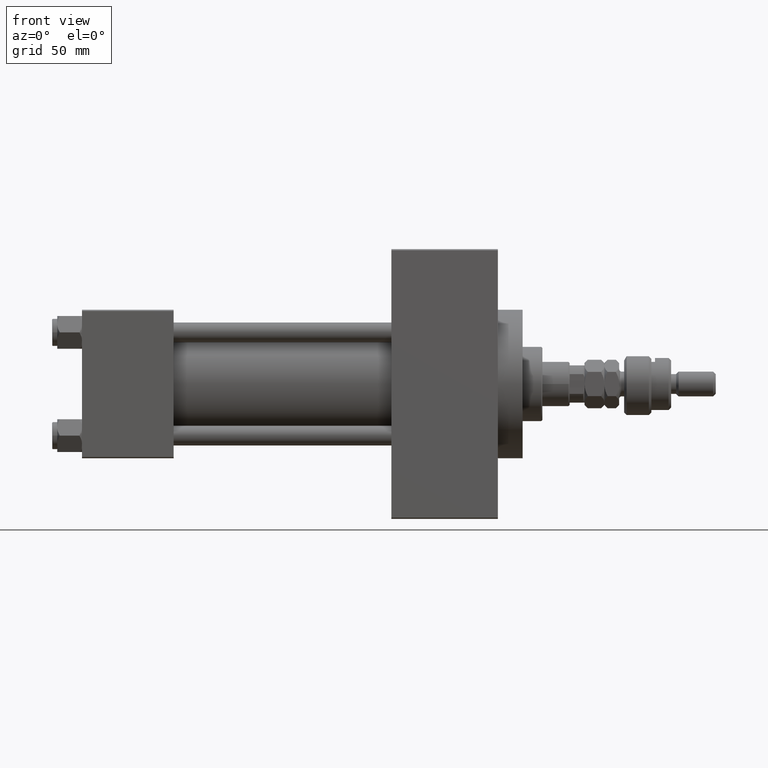
[diagram: clean part render]
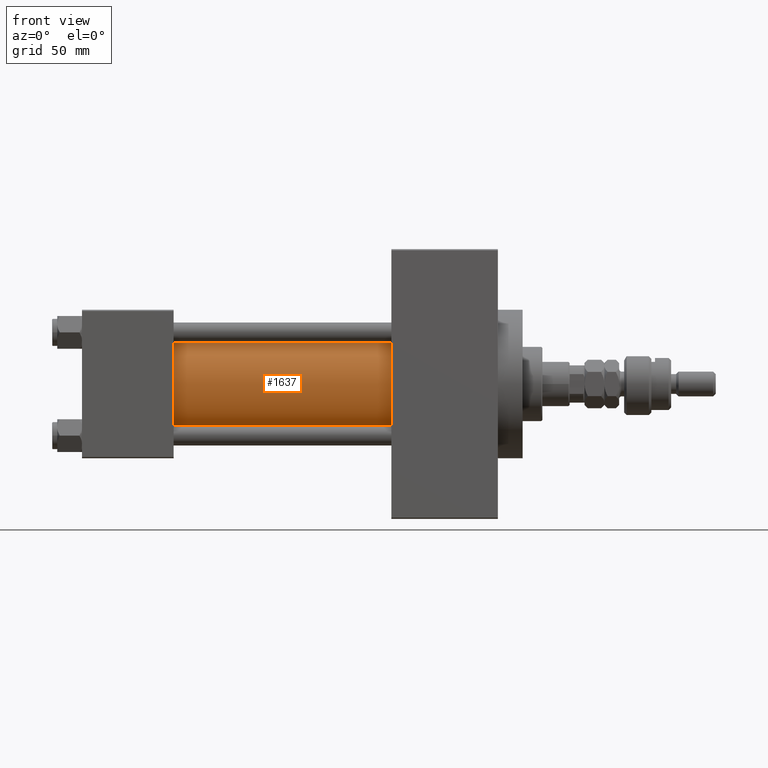
[diagram: same view with one face highlighted and labeled with its STEP entity id]
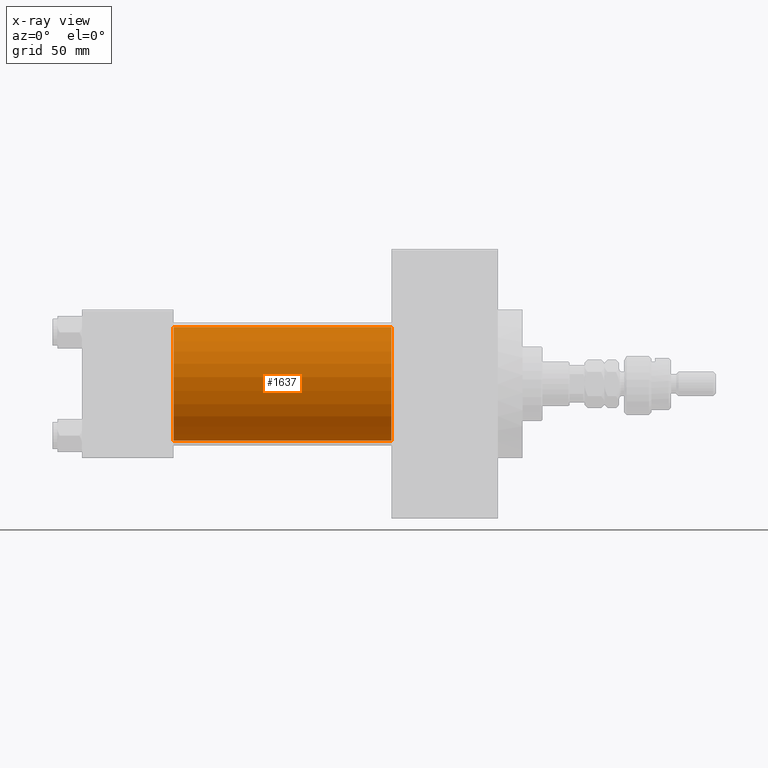
[diagram: x-ray of the same camera — body ghosted, the highlighted face saturated]
A machine part, front view. The second image highlights one B-rep face of the part: STEP entity #1637.
The next image is the same camera in x-ray: the body ghosted, the highlighted face saturated — about 0% of this face is hidden behind the body in this view.
In plain terms, the highlighted cylindrical surface (partial cylindrical patch) has radius 23 mm, axis along (-1, -0, -0).
Its self-contained STEP definition (entity closure, byte-faithful):
#1400 = EDGE_CURVE ( 'NONE', #45718, #26358, #17177, .T. ) ;
#1637 = ADVANCED_FACE ( 'NONE', ( #11327 ), #26505, .T. ) ;
#2439 = ORIENTED_EDGE ( 'NONE', *, *, #6662, .T. ) ;
#3187 = AXIS2_PLACEMENT_3D ( 'NONE', #19477, #8353, #28067 ) ;
#5225 = CIRCLE ( 'NONE', #35935, 23.00000000000000000 ) ;
#5383 = CARTESIAN_POINT ( 'NONE',  ( 125.0000000000000000, -2.602085213965210642E-15, 23.00000000000000000 ) ) ;
#6662 = EDGE_CURVE ( 'NONE', #24501, #26358, #5225, .T. ) ;
#8353 = DIRECTION ( 'NONE',  ( 1.000000000000000000, 0.000000000000000000, 0.000000000000000000 ) ) ;
#9086 = CARTESIAN_POINT ( 'NONE',  ( 125.0000000000000000, 2.146024240737016609E-16, -23.00000000000000000 ) ) ;
#9631 = ORIENTED_EDGE ( 'NONE', *, *, #1400, .F. ) ;
#11071 = CARTESIAN_POINT ( 'NONE',  ( 125.0000000000000000, -2.602085213965210642E-15, 0.000000000000000000 ) ) ;
#11327 = FACE_OUTER_BOUND ( 'NONE', #33519, .T. ) ;
#11476 = DIRECTION ( 'NONE',  ( 0.000000000000000000, 0.000000000000000000, 1.000000000000000000 ) ) ;
#12880 = DIRECTION ( 'NONE',  ( -1.000000000000000000, -0.000000000000000000, -0.000000000000000000 ) ) ;
#16345 = AXIS2_PLACEMENT_3D ( 'NONE', #11071, #22953, #26247 ) ;
#17177 = LINE ( 'NONE', #9086, #25996 ) ;
#17903 = CARTESIAN_POINT ( 'NONE',  ( 125.0000000000000000, 2.146024240737016609E-16, -23.00000000000000000 ) ) ;
#19477 = CARTESIAN_POINT ( 'NONE',  ( 125.0000000000000000, -2.602085213965210642E-15, 0.000000000000000000 ) ) ;
#19837 = VECTOR ( 'NONE', #45827, 1000.000000000000000 ) ;
#20798 = EDGE_CURVE ( 'NONE', #40347, #45718, #48433, .T. ) ;
#22953 = DIRECTION ( 'NONE',  ( -1.000000000000000000, -0.000000000000000000, -0.000000000000000000 ) ) ;
#24501 = VERTEX_POINT ( 'NONE', #48101 ) ;
#25292 = ORIENTED_EDGE ( 'NONE', *, *, #20798, .F. ) ;
#25836 = LINE ( 'NONE', #26097, #19837 ) ;
#25996 = VECTOR ( 'NONE', #12880, 1000.000000000000000 ) ;
#26097 = CARTESIAN_POINT ( 'NONE',  ( 125.0000000000000000, -2.602085213965210642E-15, 23.00000000000000000 ) ) ;
#26247 = DIRECTION ( 'NONE',  ( 0.000000000000000000, 0.000000000000000000, 1.000000000000000000 ) ) ;
#26358 = VERTEX_POINT ( 'NONE', #33729 ) ;
#26505 = CYLINDRICAL_SURFACE ( 'NONE', #16345, 23.00000000000000000 ) ;
#27304 = ORIENTED_EDGE ( 'NONE', *, *, #33743, .T. ) ;
#28067 = DIRECTION ( 'NONE',  ( 0.000000000000000000, 0.000000000000000000, -1.000000000000000000 ) ) ;
#33519 = EDGE_LOOP ( 'NONE', ( #9631, #25292, #27304, #2439 ) ) ;
#33729 = CARTESIAN_POINT ( 'NONE',  ( 37.00000000000000711, 2.146024240737016609E-16, -23.00000000000000000 ) ) ;
#33743 = EDGE_CURVE ( 'NONE', #40347, #24501, #25836, .T. ) ;
#35935 = AXIS2_PLACEMENT_3D ( 'NONE', #49690, #42598, #11476 ) ;
#40347 = VERTEX_POINT ( 'NONE', #5383 ) ;
#42598 = DIRECTION ( 'NONE',  ( 1.000000000000000000, -0.000000000000000000, 0.000000000000000000 ) ) ;
#45718 = VERTEX_POINT ( 'NONE', #17903 ) ;
#45827 = DIRECTION ( 'NONE',  ( -1.000000000000000000, -0.000000000000000000, -0.000000000000000000 ) ) ;
#48101 = CARTESIAN_POINT ( 'NONE',  ( 37.00000000000000711, -2.602085213965210642E-15, 23.00000000000000000 ) ) ;
#48433 = CIRCLE ( 'NONE', #3187, 23.00000000000000000 ) ;
#49690 = CARTESIAN_POINT ( 'NONE',  ( 37.00000000000000711, -2.602085213965210642E-15, 0.000000000000000000 ) ) ;